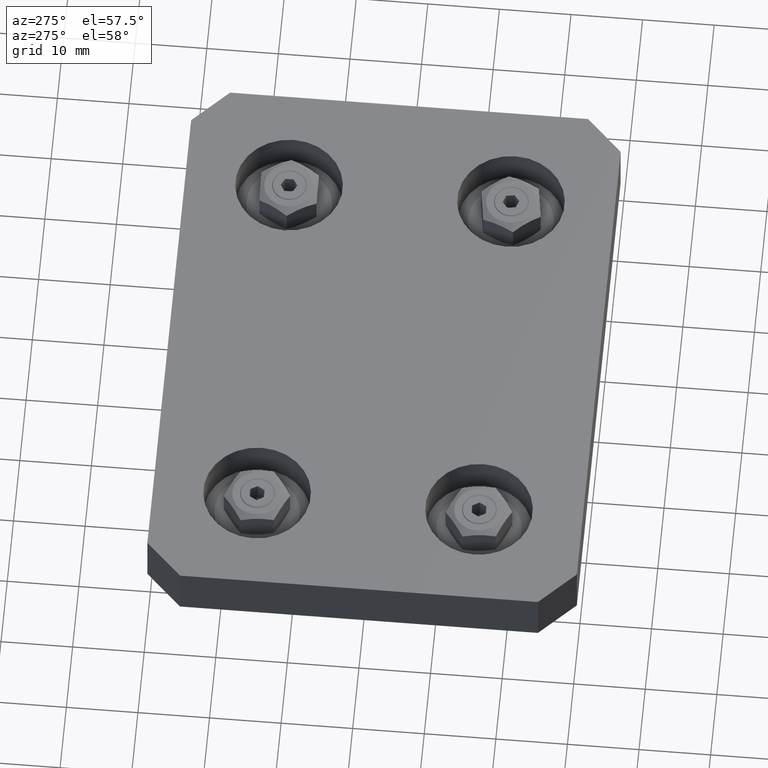
[diagram: clean part render]
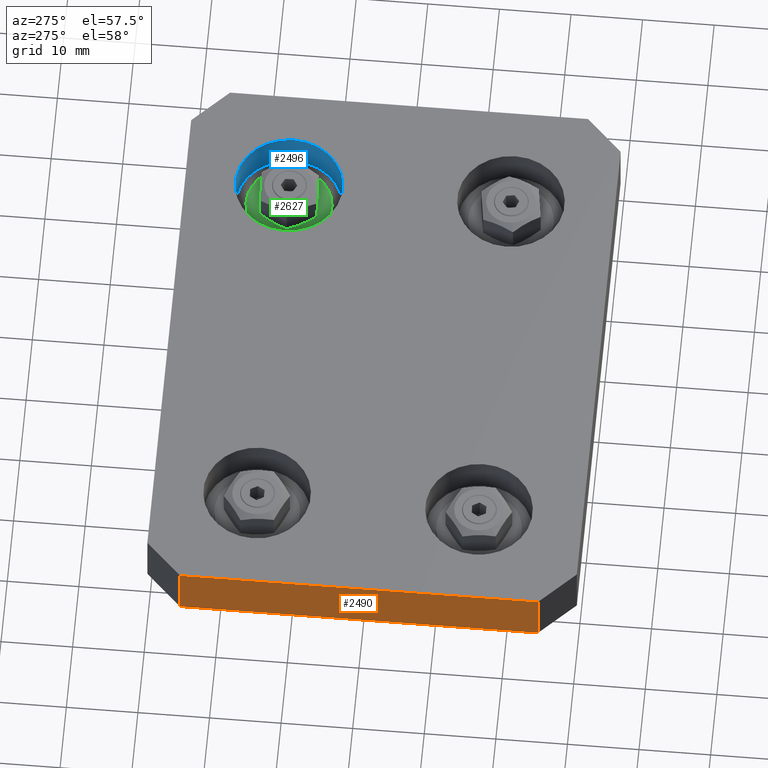
[diagram: same view with three faces highlighted in distinct colors, each labeled with its STEP entity id]
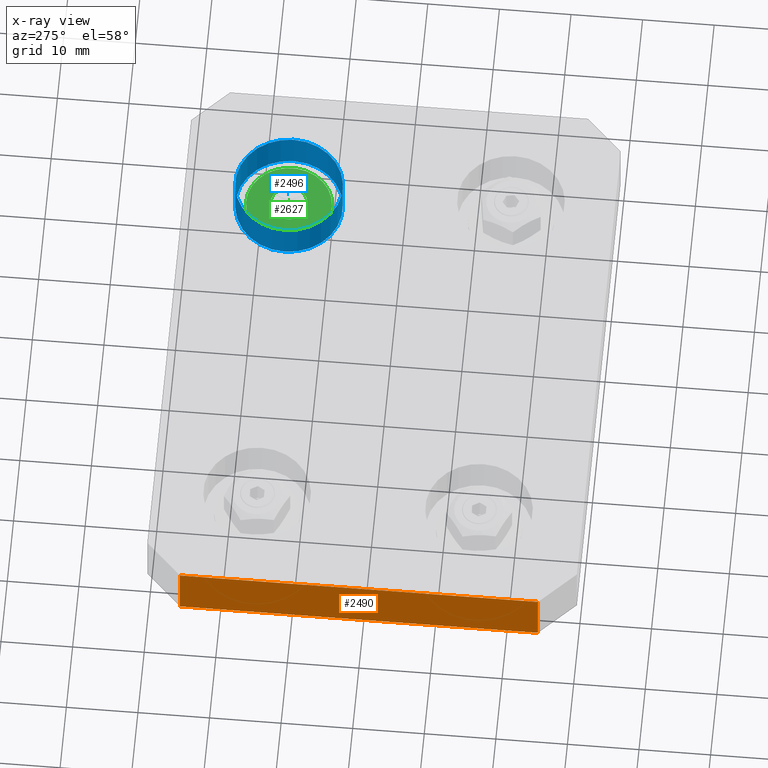
[diagram: x-ray of the same camera — body ghosted, the three highlighted faces saturated]
A machine part, auxiliary view with three faces highlighted in distinct colors.
The next image is the same camera in x-ray (body ghosted, the three faces saturated) — at least one of them is partly hidden behind the body in this view.
Their STEP definitions:

[orange] entity #2490 — the highlighted planar face has unit normal (-1, 0, 0).
#345=FACE_OUTER_BOUND('',#508,.T.);
#508=EDGE_LOOP('',(#1711,#1712,#1713,#1714));
#696=LINE('',#4029,#904);
#705=LINE('',#4054,#913);
#706=LINE('',#4057,#914);
#707=LINE('',#4058,#915);
#904=VECTOR('',#3180,10.);
#913=VECTOR('',#3203,10.);
#914=VECTOR('',#3206,10.);
#915=VECTOR('',#3207,10.);
#1111=VERTEX_POINT('',#4026);
#1112=VERTEX_POINT('',#4028);
#1120=VERTEX_POINT('',#4050);
#1122=VERTEX_POINT('',#4056);
#1337=EDGE_CURVE('',#1111,#1112,#696,.T.);
#1350=EDGE_CURVE('',#1112,#1120,#705,.T.);
#1351=EDGE_CURVE('',#1122,#1111,#706,.T.);
#1352=EDGE_CURVE('',#1122,#1120,#707,.T.);
#1711=ORIENTED_EDGE('',*,*,#1350,.F.);
#1712=ORIENTED_EDGE('',*,*,#1337,.F.);
#1713=ORIENTED_EDGE('',*,*,#1351,.F.);
#1714=ORIENTED_EDGE('',*,*,#1352,.T.);
#2396=PLANE('',#2857);
#2490=ADVANCED_FACE('',(#345),#2396,.T.);
#2857=AXIS2_PLACEMENT_3D('',#4055,#3204,#3205);
#3180=DIRECTION('',(0.,1.,0.));
#3203=DIRECTION('',(0.,0.,1.));
#3204=DIRECTION('center_axis',(-1.,0.,0.));
#3205=DIRECTION('ref_axis',(0.,0.,1.));
#3206=DIRECTION('',(0.,0.,-1.));
#3207=DIRECTION('',(0.,1.,0.));
#4026=CARTESIAN_POINT('',(-40.,-25.,0.));
#4028=CARTESIAN_POINT('',(-40.,25.,0.));
#4029=CARTESIAN_POINT('',(-40.,-30.,0.));
#4050=CARTESIAN_POINT('',(-40.,25.,8.));
#4054=CARTESIAN_POINT('',(-40.,25.,0.));
#4055=CARTESIAN_POINT('Origin',(-40.,-30.,0.));
#4056=CARTESIAN_POINT('',(-40.,-25.,8.));
#4057=CARTESIAN_POINT('',(-40.,-25.,0.));
#4058=CARTESIAN_POINT('',(-40.,-30.,8.));

[blue] entity #2496 — the highlighted cylindrical surface (bore or boss wall) has radius 7.5 mm, axis along (0, 0, 1).
#134=CYLINDRICAL_SURFACE('',#2868,7.5);
#213=CIRCLE('',#2866,7.5);
#215=CIRCLE('',#2869,7.5);
#351=FACE_OUTER_BOUND('',#516,.T.);
#516=EDGE_LOOP('',(#1731,#1732,#1733,#1734));
#712=LINE('',#4082,#920);
#920=VECTOR('',#3236,7.5);
#1127=VERTEX_POINT('',#4075);
#1129=VERTEX_POINT('',#4080);
#1360=EDGE_CURVE('',#1127,#1127,#213,.T.);
#1362=EDGE_CURVE('',#1129,#1129,#215,.T.);
#1363=EDGE_CURVE('',#1129,#1127,#712,.T.);
#1731=ORIENTED_EDGE('',*,*,#1362,.F.);
#1732=ORIENTED_EDGE('',*,*,#1363,.T.);
#1733=ORIENTED_EDGE('',*,*,#1360,.F.);
#1734=ORIENTED_EDGE('',*,*,#1363,.F.);
#2496=ADVANCED_FACE('',(#351),#134,.F.);
#2866=AXIS2_PLACEMENT_3D('',#4076,#3228,#3229);
#2868=AXIS2_PLACEMENT_3D('',#4079,#3232,#3233);
#2869=AXIS2_PLACEMENT_3D('',#4081,#3234,#3235);
#3228=DIRECTION('center_axis',(0.,0.,1.));
#3229=DIRECTION('ref_axis',(1.,0.,0.));
#3232=DIRECTION('center_axis',(0.,0.,1.));
#3233=DIRECTION('ref_axis',(1.,0.,0.));
#3234=DIRECTION('center_axis',(0.,0.,-1.));
#3235=DIRECTION('ref_axis',(1.,0.,0.));
#3236=DIRECTION('',(0.,0.,-1.));
#4075=CARTESIAN_POINT('',(18.,15.5,2.5));
#4076=CARTESIAN_POINT('Origin',(25.5,15.5,2.5));
#4079=CARTESIAN_POINT('Origin',(25.5,15.5,5.25));
#4080=CARTESIAN_POINT('',(18.,15.5,8.));
#4081=CARTESIAN_POINT('Origin',(25.5,15.5,8.));
#4082=CARTESIAN_POINT('',(18.,15.5,5.25));

[green] entity #2627 — the highlighted conical surface has half-angle 85.795 deg.
#98=CONICAL_SURFACE('',#3120,4.3,1.49739900089328);
#329=CIRCLE('',#3121,6.);
#330=CIRCLE('',#3122,2.6);
#482=FACE_OUTER_BOUND('',#669,.T.);
#669=EDGE_LOOP('',(#2315,#2316,#2317,#2318));
#881=LINE('',#4681,#1089);
#1089=VECTOR('',#3909,4.3);
#1306=VERTEX_POINT('',#4678);
#1307=VERTEX_POINT('',#4680);
#1645=EDGE_CURVE('',#1306,#1306,#329,.T.);
#1646=EDGE_CURVE('',#1306,#1307,#881,.T.);
#1647=EDGE_CURVE('',#1307,#1307,#330,.T.);
#2315=ORIENTED_EDGE('',*,*,#1645,.F.);
#2316=ORIENTED_EDGE('',*,*,#1646,.T.);
#2317=ORIENTED_EDGE('',*,*,#1647,.T.);
#2318=ORIENTED_EDGE('',*,*,#1646,.F.);
#2627=ADVANCED_FACE('',(#482),#98,.T.);
#3120=AXIS2_PLACEMENT_3D('',#4677,#3905,#3906);
#3121=AXIS2_PLACEMENT_3D('',#4679,#3907,#3908);
#3122=AXIS2_PLACEMENT_3D('',#4682,#3910,#3911);
#3905=DIRECTION('center_axis',(0.,-1.,0.));
#3906=DIRECTION('ref_axis',(1.,0.,0.));
#3907=DIRECTION('center_axis',(0.,-1.,0.));
#3908=DIRECTION('ref_axis',(1.,0.,0.));
#3909=DIRECTION('',(0.997307625290336,0.0733314430360542,1.22134959107706E-16));
#3910=DIRECTION('center_axis',(0.,-1.,0.));
#3911=DIRECTION('ref_axis',(1.,0.,0.));
#4677=CARTESIAN_POINT('Origin',(0.,0.625,0.));
#4678=CARTESIAN_POINT('',(-6.,0.5,-7.34788079488412E-16));
#4679=CARTESIAN_POINT('Origin',(0.,0.5,0.));
#4680=CARTESIAN_POINT('',(-2.6,0.75,-3.18408167778312E-16));
#4681=CARTESIAN_POINT('',(-4.3,0.625,-5.26598123633362E-16));
#4682=CARTESIAN_POINT('Origin',(0.,0.75,0.));